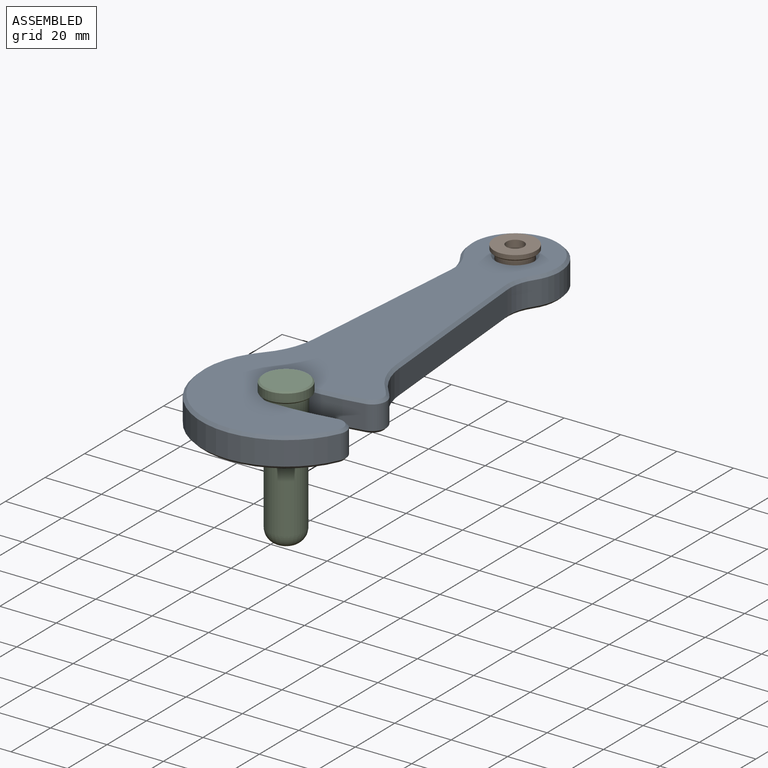
[diagram: assembled view]
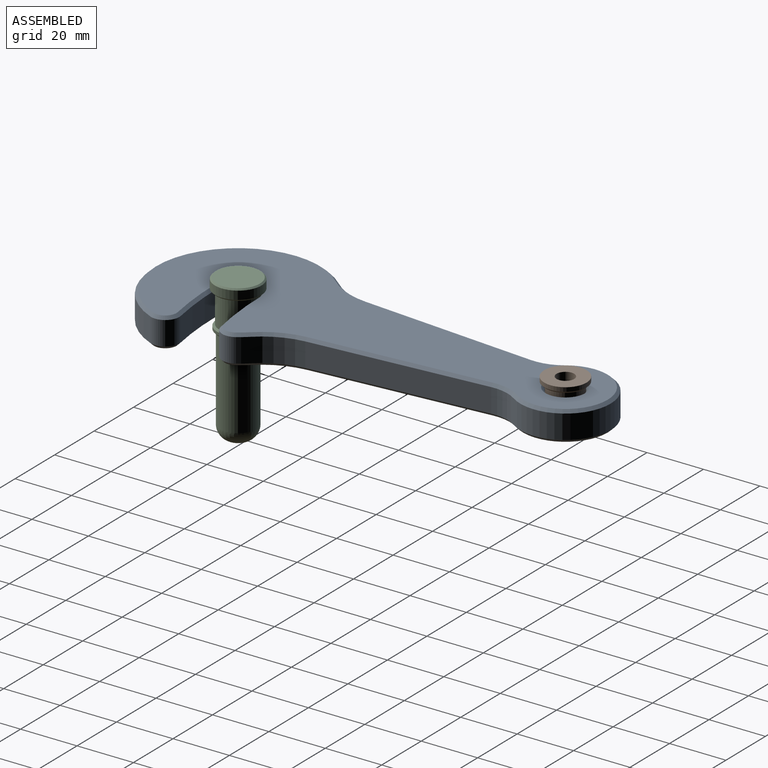
[diagram: assembled view, second angle]
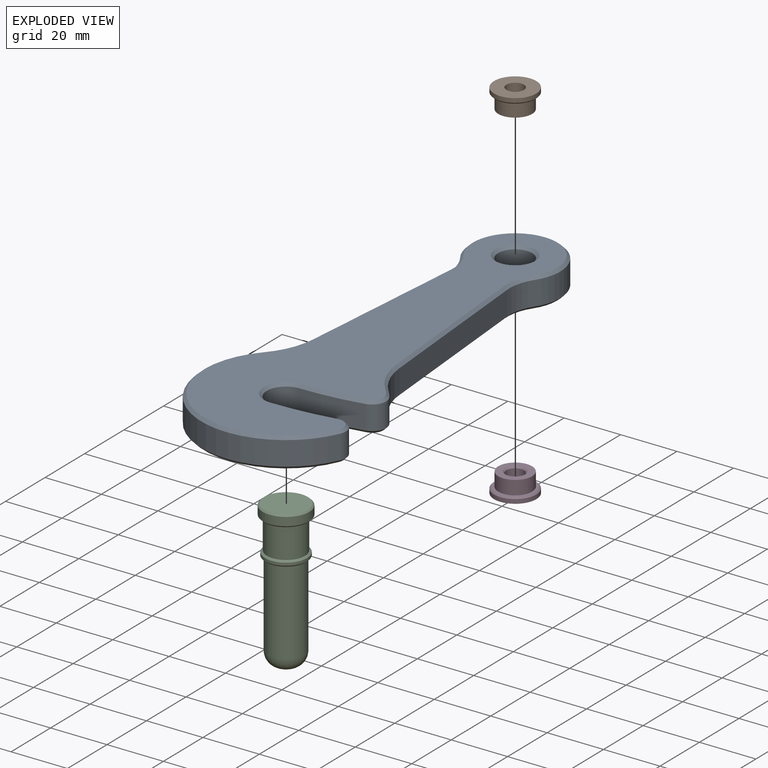
[diagram: exploded view]
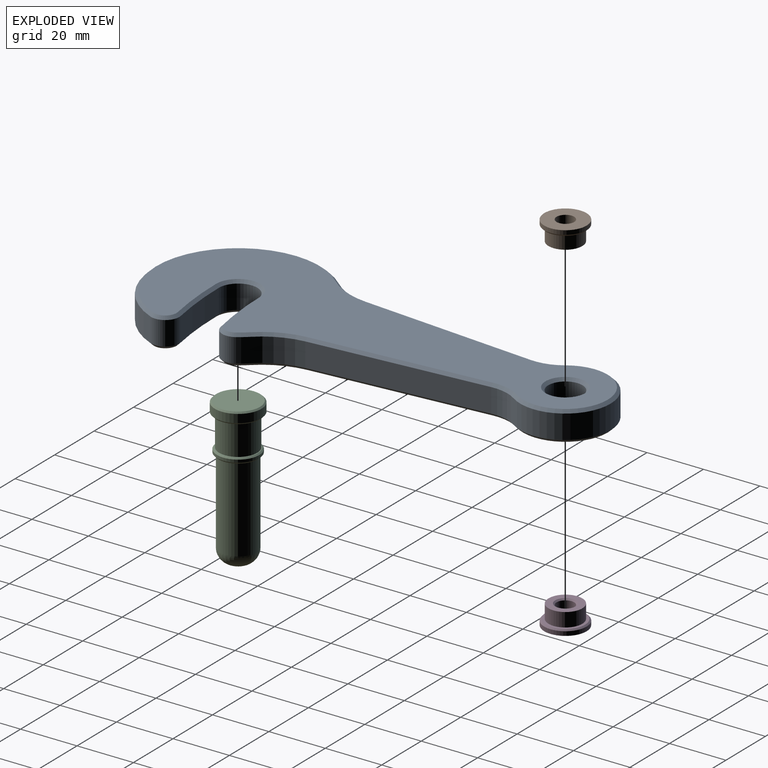
[diagram: exploded view, second angle]
ASSEMBLY  parts=4 mates=3
PART A: 47 faces, bbox 58x162x10.5 mm
  f0: plane 160.01x56.03mm, normal (0,0,1), area 4490.3mm2, adj f32,f33,f34,f35,f36,f37,f38,f39
  f1: plane 160.01x56.03mm, normal (0,0,-1), area 4490.3mm2, adj f17,f18,f19,f20,f21,f22,f23,f24
  f2: cylinder r=6.83mm len=13.65mm, axis (0,0,1), area 182.3mm2, adj f4,f10,f25,f40
  f3: cylinder r=6.07mm len=12.15mm, axis (0,0,1), area 324.4mm2, adj f31,f46
  f4: cylinder r=122.83mm len=22.13mm, axis (0,0,1), area 189.1mm2, adj f2,f16,f27,f42
  f5: cylinder r=30mm len=57.63mm, axis (0,0,1), area 887mm2, adj f13,f16,f30,f45
  f6: plane 62.23x8.5mm, normal (-1,0.08,0), area 530.8mm2, adj f11,f13,f26,f41
  f7: cylinder r=16.01mm len=32.02mm, axis (0,0,1), area 592.3mm2, adj f11,f12,f22,f37
  f8: plane 62.23x8.5mm, normal (1,0.08,0), area 530.8mm2, adj f12,f14,f18,f33
  f9: cylinder r=30mm len=8.5mm, axis (0,0,1), area 37.4mm2, adj f14,f15,f19,f34
  f10: cylinder r=109.17mm len=21.77mm, axis (0,0,1), area 186.3mm2, adj f2,f15,f23,f38
  f11: cylinder r=15mm len=9.81mm, axis (0,0,1), area 88mm2, adj f6,f7,f24,f39
  f12: cylinder r=15mm len=9.81mm, axis (0,0,1), area 88mm2, adj f7,f8,f20,f35
  f13: cylinder r=25mm len=14.69mm, axis (0,0,1), area 138.6mm2, adj f5,f6,f28,f43
  f14: cylinder r=25mm len=14.69mm, axis (0,0,1), area 138.6mm2, adj f8,f9,f17,f32
  f15: cylinder r=5mm len=8.5mm, axis (0,0,1), area 83.3mm2, adj f9,f10,f21,f36
  f16: cylinder r=5mm len=8.5mm, axis (0,0,-1), area 91.5mm2, adj f4,f5,f29,f44
  f17: cone r=26mm half-angle=45deg, axis (0,0,-1), area 23.5mm2, adj f1,f14,f18,f19
  f18: plane 62.31x6.27mm, normal (0.7,0.06,-0.71), area 88.3mm2, adj f1,f8,f17,f20
  f19: cone r=30mm half-angle=45deg, axis (0,0,1), area 6.1mm2, adj f1,f9,f17,f21
  f20: cone r=16mm half-angle=45deg, axis (0,0,-1), area 15.1mm2, adj f1,f12,f18,f22
  f21: cone r=4mm half-angle=45deg, axis (0,0,1), area 12.5mm2, adj f1,f15,f19,f23
  f22: cone r=16.01mm half-angle=45deg, axis (0,0,1), area 95.5mm2, adj f1,f7,f20,f24
  f23: cone r=109.17mm half-angle=45deg, axis (0,0,1), area 30.8mm2, adj f1,f10,f21,f25
  f24: cone r=16mm half-angle=45deg, axis (0,0,-1), area 15.1mm2, adj f1,f11,f22,f26
  f25: cone r=6.83mm half-angle=45deg, axis (0,0,-1), area 32.5mm2, adj f1,f2,f23,f27
  f26: plane 62.31x6.27mm, normal (-0.7,0.06,-0.71), area 88.3mm2, adj f1,f6,f24,f28
  f27: cone r=123.83mm half-angle=45deg, axis (0,0,-1), area 31.6mm2, adj f1,f4,f25,f29
  f28: cone r=26mm half-angle=45deg, axis (0,0,-1), area 23.5mm2, adj f1,f13,f26,f30
  f29: cone r=4mm half-angle=45deg, axis (0,0,1), area 13.7mm2, adj f1,f16,f27,f30
  f30: cone r=30mm half-angle=45deg, axis (0,0,1), area 145.1mm2, adj f1,f5,f28,f29
  f31: cone r=6.07mm half-angle=45deg, axis (0,0,-1), area 58.4mm2, adj f1,f3
  f32: cone r=26mm half-angle=45deg, axis (0,0,1), area 23.5mm2, adj f0,f14,f33,f34
  f33: plane 62.31x6.27mm, normal (0.7,0.06,0.71), area 88.3mm2, adj f0,f8,f32,f35
  f34: cone r=29mm half-angle=45deg, axis (0,0,-1), area 6.1mm2, adj f0,f9,f32,f36
  f35: cone r=16mm half-angle=45deg, axis (0,0,1), area 15.1mm2, adj f0,f12,f33,f37
  f36: cone r=4mm half-angle=45deg, axis (0,0,-1), area 12.5mm2, adj f0,f15,f34,f38
  f37: cone r=15.01mm half-angle=45deg, axis (0,0,-1), area 95.5mm2, adj f0,f7,f35,f39
  f38: cone r=108.17mm half-angle=45deg, axis (0,0,-1), area 30.8mm2, adj f0,f10,f36,f40
  f39: cone r=16mm half-angle=45deg, axis (0,0,1), area 15.1mm2, adj f0,f11,f37,f41
  f40: cone r=6.83mm half-angle=45deg, axis (0,0,1), area 32.5mm2, adj f0,f2,f38,f42
  f41: plane 62.31x6.27mm, normal (-0.7,0.06,0.71), area 88.3mm2, adj f0,f6,f39,f43
  f42: cone r=122.83mm half-angle=45deg, axis (0,0,1), area 31.6mm2, adj f0,f4,f40,f44
  f43: cone r=26mm half-angle=45deg, axis (0,0,1), area 23.5mm2, adj f0,f13,f41,f45
  f44: cone r=4mm half-angle=45deg, axis (0,0,-1), area 13.7mm2, adj f0,f16,f42,f45
  f45: cone r=29mm half-angle=45deg, axis (0,0,-1), area 145.1mm2, adj f0,f5,f43,f44
  f46: cone r=6.07mm half-angle=45deg, axis (0,0,1), area 58.4mm2, adj f0,f3
PART B: 8 faces, bbox 15x15x7 mm
  f0: cylinder r=7.5mm len=15mm, axis (0,0,-1), area 70.7mm2, adj f2,f6
  f1: plane 14x14mm, normal (0,0,1), area 40.8mm2, adj f3,f6
  f2: plane 15x15mm, normal (0,0,-1), area 146mm2, adj f0,f5
  f3: cylinder r=6mm len=12mm, axis (0,0,-1), area 186.6mm2, adj f1,f4
  f4: plane 12x12mm, normal (0,0,1), area 71.8mm2, adj f3,f7
  f5: cylinder r=3.12mm len=6.45mm, axis (0,0,1), area 126.6mm2, adj f2,f7
  f6: cone r=7mm half-angle=45deg, axis (0,0,-1), area 32.2mm2, adj f0,f1
  f7: cone r=3.12mm half-angle=45deg, axis (0,0,1), area 15mm2, adj f4,f5
PART C: 14 faces, bbox 16.5x16.5x52 mm
  f0: cylinder r=6.5mm len=30mm, axis (0,0,-1), area 1225.2mm2, adj f4,f13
  f1: plane 3x3mm, normal (0,0,-1), area 7.1mm2, adj f13
  f2: cylinder r=7.5mm len=15mm, axis (0,0,-1), area 47.1mm2, adj f9,f10
  f3: plane 14x14mm, normal (0,0,1), area 10.8mm2, adj f5,f9
  f4: plane 14x14mm, normal (0,0,-1), area 21.2mm2, adj f0,f10
  f5: cylinder r=6.75mm len=13.5mm, axis (0,0,-1), area 466.5mm2, adj f3,f8
  f6: cylinder r=8.25mm len=16.5mm, axis (0,0,-1), area 155.5mm2, adj f11,f12
  f7: plane 15.5x15.5mm, normal (0,0,1), area 188.7mm2, adj f11
  f8: plane 15.5x15.5mm, normal (0,0,-1), area 45.6mm2, adj f5,f12
  f9: cone r=7mm half-angle=45deg, axis (0,0,-1), area 32.2mm2, adj f2,f3
  f10: cone r=7.5mm half-angle=45deg, axis (0,0,1), area 32.2mm2, adj f2,f4
  f11: cone r=7.75mm half-angle=45deg, axis (0,0,-1), area 35.5mm2, adj f6,f7
  f12: cone r=8.25mm half-angle=45deg, axis (0,0,1), area 35.5mm2, adj f6,f8
  f13: torus R=1.5mm, axis (0,0,1), area 231.1mm2, adj f0,f1
PART D: same geometry as B
PLACE A t=(54.82,-12.51,29.54)mm
PLACE B rot(axis=(-1,0,0),180deg) t=(54.82,45.49,43.52)mm
PLACE C t=(54.82,-70.51,-7.71)mm
PLACE D t=(54.82,45.49,28.54)mm
MATE cylindrical D.f3 <-> A.f3  axis (0,0,-1) through (54.82,45.49,30.54)mm
MATE slider C.f5 <-> A.f2  axis (0,0,-1) through (54.82,-70.51,34.79)mm
MATE slider A.f3 <-> B.f3  axis (0,0,1) through (54.82,45.49,39.04)mm
